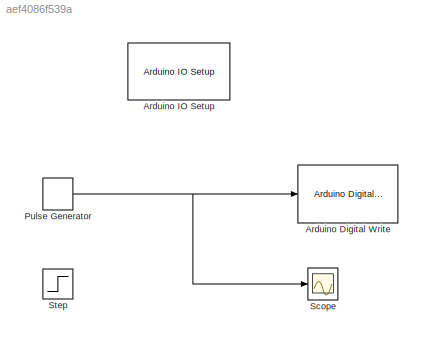
MODEL slx_aef4086f539a
KIND model
BLOCK [Reference] Arduino Digital Write  REF=arduino_io_lib/Arduino Digital Write
  Ports = [1]
  SourceBlock = arduino_io_lib/Arduino Digital Write
  SourceType = Arduino IO digital Write
  T = 0.2
  arduinoPin = 13
  arduinoVar = Existing workspace arduino variable #1
BLOCK [Reference] Arduino IO Setup  REF=arduino_io_lib/Arduino IO Setup
  Ports = []
  Priority = 3
  SourceBlock = arduino_io_lib/Arduino IO Setup
  SourceType = Arduino IO Setup
  arduinoVar = Existing workspace arduino variable #1
  comPort = COM3
  workspaceVarName = a
BLOCK [DiscretePulseGenerator] Pulse Generator
  Period = 100
  Ports = [0, 1]
  PulseType = Time based
  PulseWidth = 50
BLOCK [Scope] Scope
  DataFormat = StructureWithTime
  Floating = off
  NumInputPorts = 1
  Ports = [1]
  SampleTime = 0
  ShowLegends = off
BLOCK [Step] Step
  SampleTime = 0
NET Pulse Generator:1 -> Arduino Digital Write:1, Scope:1
note: NET lines group one-source signal fan-out (src -> all destinations, sorted); 1:1 wires keep LINE
